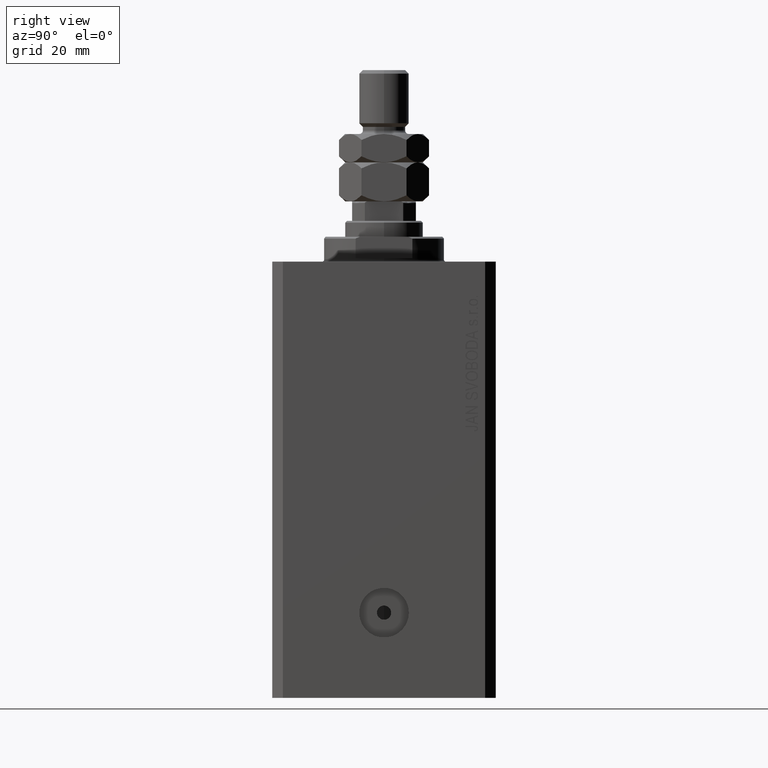
[diagram: clean part render]
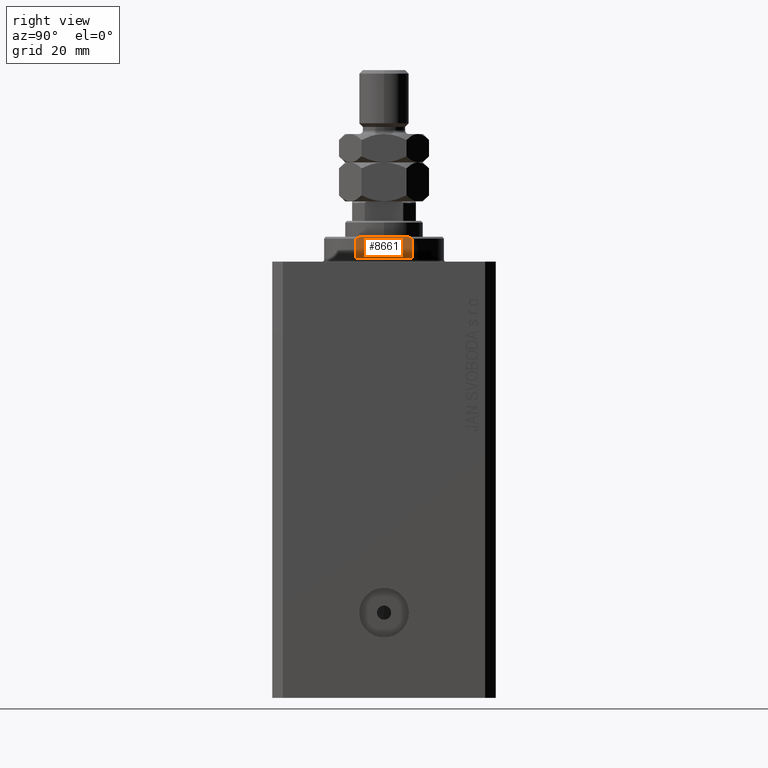
[diagram: same view with one face highlighted and labeled with its STEP entity id]
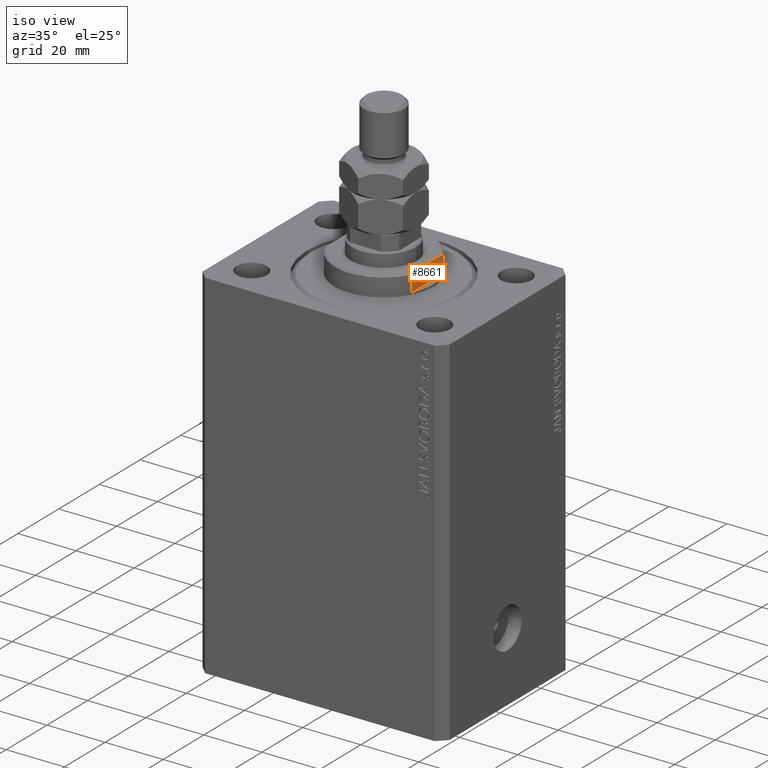
[diagram: same view with one face highlighted and labeled with its STEP entity id]
A machine part, right view. The second image highlights one B-rep face of the part: STEP entity #8661.
A second angle (iso view) of the same face is appended — the face is thin or edge-on in the first view.
In plain terms, the highlighted planar face has unit normal (-1, 0, 0).
Its self-contained STEP definition (entity closure, byte-faithful):
#1326 = CARTESIAN_POINT ( 'NONE',  ( -15.00000000000000000, 7.628315461082496363, -6.674910371255315056 ) ) ;
#2011 = EDGE_CURVE ( 'NONE', #38109, #43528, #7856, .T. ) ;
#2694 = CARTESIAN_POINT ( 'NONE',  ( -15.00000000000000000, -7.254193676168162241, -6.841555306644511170 ) ) ;
#3859 = CARTESIAN_POINT ( 'NONE',  ( -15.00000000000000000, -8.000000000000001776, -6.500000000000014211 ) ) ;
#4592 = LINE ( 'NONE', #38530, #12319 ) ;
#5206 = CARTESIAN_POINT ( 'NONE',  ( -15.00000000000000000, -42.42640687119285303, -1.000000000000000000 ) ) ;
#5208 = CARTESIAN_POINT ( 'NONE',  ( -15.00000000000000000, -42.42640687119285303, -1.000000000000000000 ) ) ;
#5432 = DIRECTION ( 'NONE',  ( 1.000000000000000000, 0.000000000000000000, 0.000000000000000000 ) ) ;
#5496 = CARTESIAN_POINT ( 'NONE',  ( -15.00000000000000000, -7.629305121525828071, -6.674444648693746984 ) ) ;
#7682 = VERTEX_POINT ( 'NONE', #38180 ) ;
#7856 = B_SPLINE_CURVE_WITH_KNOTS ( 'NONE', 3,
 ( #16703, #2694, #5496, #27445 ),
 .UNSPECIFIED., .F., .F.,
 ( 4, 4 ),
 ( 0.04875332532859021767, 0.04998905627745620778 ),
 .UNSPECIFIED. ) ;
#8661 = ADVANCED_FACE ( 'NONE', ( #40472 ), #26925, .F. ) ;
#10192 = ORIENTED_EDGE ( 'NONE', *, *, #38405, .F. ) ;
#11085 = VECTOR ( 'NONE', #38356, 1000.000000000000000 ) ;
#12268 = CARTESIAN_POINT ( 'NONE',  ( -14.99999999999999645, -6.873863542433817031, -7.000000000000000000 ) ) ;
#12319 = VECTOR ( 'NONE', #35030, 1000.000000000000000 ) ;
#12748 = CARTESIAN_POINT ( 'NONE',  ( -15.00000000000000000, 7.253126193285960532, -6.842000017654668476 ) ) ;
#13570 = CARTESIAN_POINT ( 'NONE',  ( -15.00000000000000000, 8.000000000000001776, -6.500000000000013323 ) ) ;
#16703 = CARTESIAN_POINT ( 'NONE',  ( -14.99999999999999645, -6.873863542433817031, -7.000000000000000000 ) ) ;
#17570 = VECTOR ( 'NONE', #23631, 1000.000000000000000 ) ;
#20026 = ORIENTED_EDGE ( 'NONE', *, *, #31967, .T. ) ;
#20108 = EDGE_CURVE ( 'NONE', #21638, #43528, #45577, .T. ) ;
#21638 = VERTEX_POINT ( 'NONE', #21965 ) ;
#21965 = CARTESIAN_POINT ( 'NONE',  ( -14.99999999999999645, -8.000000000000003553, -1.000000000000000000 ) ) ;
#22260 = VERTEX_POINT ( 'NONE', #13570 ) ;
#23631 = DIRECTION ( 'NONE',  ( -0.000000000000000000, -0.000000000000000000, 1.000000000000000000 ) ) ;
#23682 = EDGE_LOOP ( 'NONE', ( #39764, #20026, #37998, #40614, #10192, #26448 ) ) ;
#24234 = EDGE_CURVE ( 'NONE', #22260, #7682, #44811, .T. ) ;
#26448 = ORIENTED_EDGE ( 'NONE', *, *, #36920, .F. ) ;
#26925 = PLANE ( 'NONE',  #32224 ) ;
#27445 = CARTESIAN_POINT ( 'NONE',  ( -15.00000000000000000, -8.000000000000001776, -6.500000000000014211 ) ) ;
#28770 = VECTOR ( 'NONE', #30194, 1000.000000000000000 ) ;
#30194 = DIRECTION ( 'NONE',  ( -0.000000000000000000, -1.000000000000000000, -0.000000000000000000 ) ) ;
#31967 = EDGE_CURVE ( 'NONE', #7682, #38109, #4592, .T. ) ;
#32224 = AXIS2_PLACEMENT_3D ( 'NONE', #5206, #5432, #44662 ) ;
#33648 = LINE ( 'NONE', #44404, #17570 ) ;
#33998 = CARTESIAN_POINT ( 'NONE',  ( -14.99999999999999645, 6.873863542433817031, -7.000000000000000000 ) ) ;
#35030 = DIRECTION ( 'NONE',  ( -0.000000000000000000, -1.000000000000000000, -0.000000000000000000 ) ) ;
#36920 = EDGE_CURVE ( 'NONE', #22260, #46193, #33648, .T. ) ;
#37265 = CARTESIAN_POINT ( 'NONE',  ( -15.00000000000000000, 8.000000000000001776, -6.500000000000013323 ) ) ;
#37998 = ORIENTED_EDGE ( 'NONE', *, *, #2011, .T. ) ;
#38109 = VERTEX_POINT ( 'NONE', #12268 ) ;
#38180 = CARTESIAN_POINT ( 'NONE',  ( -14.99999999999999645, 6.873863542433817031, -7.000000000000000000 ) ) ;
#38356 = DIRECTION ( 'NONE',  ( 0.000000000000000000, 0.000000000000000000, -1.000000000000000000 ) ) ;
#38405 = EDGE_CURVE ( 'NONE', #46193, #21638, #40474, .T. ) ;
#38530 = CARTESIAN_POINT ( 'NONE',  ( -15.00000000000000000, -42.42640687119285303, -7.000000000000000000 ) ) ;
#39764 = ORIENTED_EDGE ( 'NONE', *, *, #24234, .T. ) ;
#40472 = FACE_OUTER_BOUND ( 'NONE', #23682, .T. ) ;
#40474 = LINE ( 'NONE', #5208, #28770 ) ;
#40614 = ORIENTED_EDGE ( 'NONE', *, *, #20108, .F. ) ;
#42449 = CARTESIAN_POINT ( 'NONE',  ( -14.99999999999999645, 8.000000000000003553, -1.000000000000000000 ) ) ;
#42547 = CARTESIAN_POINT ( 'NONE',  ( -15.00000000000000000, -8.000000000000001776, -7.000000000000000000 ) ) ;
#43528 = VERTEX_POINT ( 'NONE', #3859 ) ;
#44404 = CARTESIAN_POINT ( 'NONE',  ( -15.00000000000000000, 8.000000000000001776, -7.000000000000000000 ) ) ;
#44662 = DIRECTION ( 'NONE',  ( 0.000000000000000000, 0.000000000000000000, -1.000000000000000000 ) ) ;
#44811 = B_SPLINE_CURVE_WITH_KNOTS ( 'NONE', 3,
 ( #37265, #1326, #12748, #33998 ),
 .UNSPECIFIED., .F., .F.,
 ( 4, 4 ),
 ( 0.03336039268696996268, 0.03459498301323797598 ),
 .UNSPECIFIED. ) ;
#45577 = LINE ( 'NONE', #42547, #11085 ) ;
#46193 = VERTEX_POINT ( 'NONE', #42449 ) ;